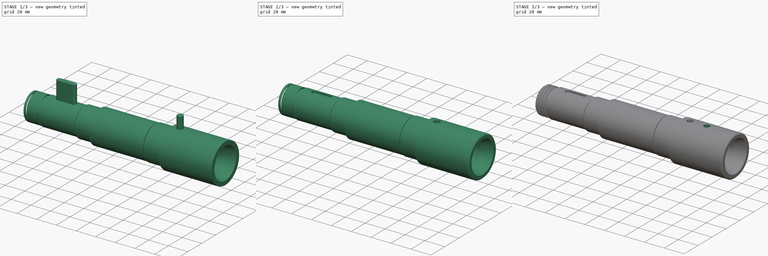
[diagram: build sequence overview — one tinted view per stage of 3, left to right]
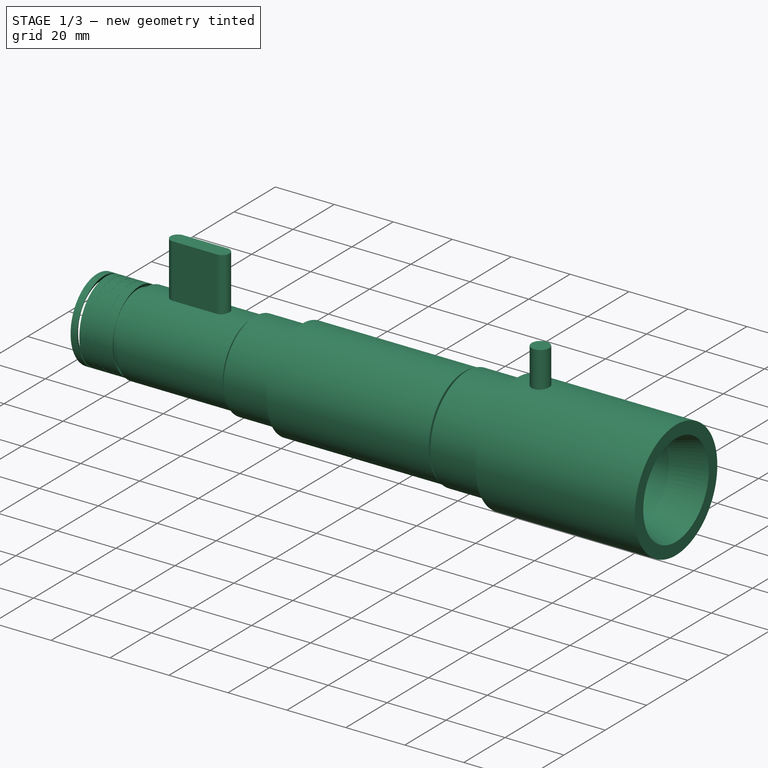
[diagram: stage 1 of 3 — iso view after this stage's code; geometry added in this stage tinted green]
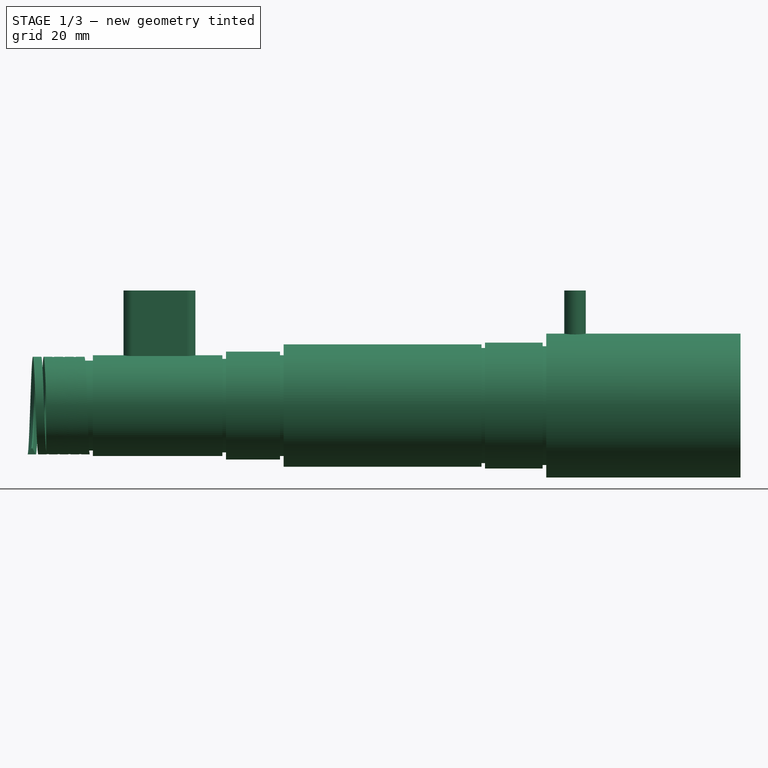
[diagram: stage 1 of 3 — front view after this stage's code; geometry added in this stage tinted green]
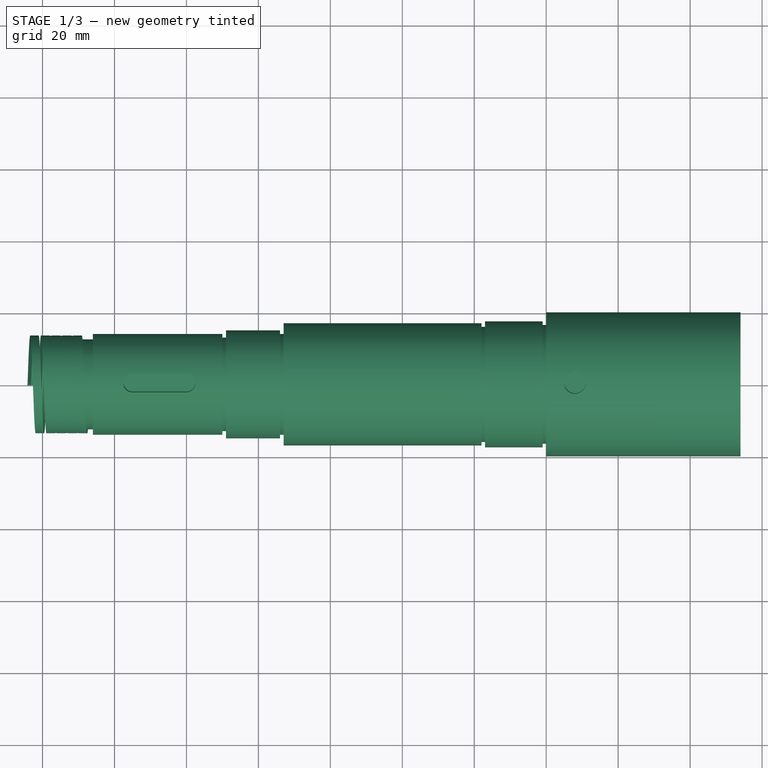
[diagram: stage 1 of 3 — top view after this stage's code; geometry added in this stage tinted green]
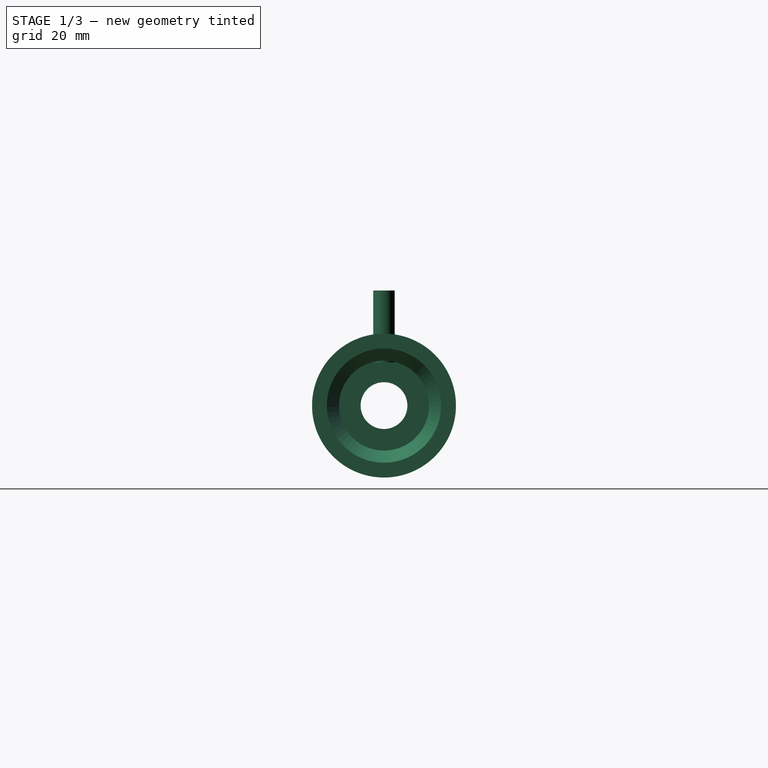
[diagram: stage 1 of 3 — right view after this stage's code; geometry added in this stage tinted green]
FCSTD DOCUMENT  (FreeCAD 0.16R5653 (Git))
Label: Spindle-2
License: All rights reserved
LicenseURL: http://en.wikipedia.org/wiki/All_rights_reserved
objects: Sketcher::SketchObject×4, Part::Cut×3, PartDesign::Pad×2, PartDesign::Revolution×1, PartDesign::Chamfer×1, Part::Feature×1, Part::Sweep×1
note: 16 computed .brp shape members not serialized (recipe doc carries the construction recipe); baked Part::Feature solids carry a one-line shape summary decoded from their .brp

FEATURE [Sketcher::SketchObject] Sketch
  Placement = pos=(0,0,0) rot=(1,0,0;1.5708rad)
  sketch-geometry (33):
    g0: LineSegment StartX=-132.021 StartY=10 StartZ=0 EndX=-139 EndY=10 EndZ=0
    g1: LineSegment StartX=-139 StartY=10 StartZ=0 EndX=-139 EndY=13.5 EndZ=0
    g2: LineSegment StartX=-139 StartY=13.5 StartZ=0 EndX=-129 EndY=13.5 EndZ=0
    g3: LineSegment StartX=-129 StartY=13.5 StartZ=0 EndX=-129 EndY=12.5 EndZ=0
    g4: LineSegment StartX=-129 StartY=12.5 StartZ=0 EndX=-126 EndY=12.5 EndZ=0
    g5: LineSegment StartX=-126 StartY=12.5 StartZ=0 EndX=-126 EndY=14 EndZ=0
    g6: LineSegment StartX=-126 StartY=14 StartZ=0 EndX=-90 EndY=14 EndZ=0
    g7: LineSegment StartX=-90 StartY=14 StartZ=0 EndX=-90 EndY=13 EndZ=0
    g8: LineSegment StartX=-90 StartY=13 StartZ=0 EndX=-89 EndY=13 EndZ=0
    g9: LineSegment StartX=-89 StartY=13 StartZ=0 EndX=-89 EndY=15 EndZ=0
    g10: LineSegment StartX=-89 StartY=15 StartZ=0 EndX=-74 EndY=15 EndZ=0
    g11: LineSegment StartX=-74 StartY=15 StartZ=0 EndX=-74 EndY=14 EndZ=0
    g12: LineSegment StartX=-74 StartY=14 StartZ=0 EndX=-73 EndY=14 EndZ=0
    g13: LineSegment StartX=-73 StartY=14 StartZ=0 EndX=-73 EndY=17 EndZ=0
    g14: LineSegment StartX=-73 StartY=17 StartZ=0 EndX=-18 EndY=17 EndZ=0
    g15: LineSegment StartX=-18 StartY=17 StartZ=0 EndX=-18 EndY=16 EndZ=0
    g16: LineSegment StartX=-18 StartY=16 StartZ=0 EndX=-17 EndY=16 EndZ=0
    g17: LineSegment StartX=-17 StartY=16 StartZ=0 EndX=-17 EndY=17.5 EndZ=0
    g18: LineSegment StartX=-17 StartY=17.5 StartZ=0 EndX=-1 EndY=17.5 EndZ=0
    g19: LineSegment StartX=-1 StartY=17.5 StartZ=0 EndX=-1 EndY=16.5 EndZ=0
    g20: LineSegment StartX=-1 StartY=16.5 StartZ=0 EndX=0 EndY=16.5 EndZ=0
    g21: LineSegment StartX=0 StartY=16.5 StartZ=0 EndX=0 EndY=20 EndZ=0
    g22: LineSegment StartX=0 StartY=20 StartZ=0 EndX=54 EndY=20 EndZ=0
    g23: LineSegment StartX=54 StartY=20 StartZ=0 EndX=54 EndY=15.875 EndZ=0
    g24: LineSegment StartX=54 StartY=15.875 StartZ=0 EndX=42.8566 EndY=12.5 EndZ=0
    g25: LineSegment StartX=-5 StartY=12.05 StartZ=0 EndX=-48 EndY=12.05 EndZ=0
    g26: LineSegment StartX=-48 StartY=12.05 StartZ=0 EndX=-48 EndY=13 EndZ=0
    g27: LineSegment StartX=-48 StartY=13 StartZ=0 EndX=-53 EndY=13 EndZ=0
    g28: LineSegment StartX=-132.021 StartY=10 StartZ=0 EndX=-130 EndY=6.5 EndZ=0
    g29: LineSegment StartX=-130 StartY=6.5 StartZ=0 EndX=-53 EndY=6.5 EndZ=0
    g30: LineSegment StartX=-53 StartY=6.5 StartZ=0 EndX=-53 EndY=13 EndZ=0
    g31: LineSegment StartX=-5 StartY=12.05 StartZ=0 EndX=-5 EndY=12.5 EndZ=0
    g32: LineSegment StartX=-5 StartY=12.5 StartZ=0 EndX=42.8566 EndY=12.5 EndZ=0
  constraints (99):
    c: Horizontal(g0)
    c: Coincident(g0,g1)
    c: Vertical(g1)
    c: Coincident(g1,g2)
    c: Horizontal(g2)
    c: Coincident(g2,g3)
    c: Coincident(g3,g4)
    c: Horizontal(g4)
    c: Coincident(g4,g5)
    c: Coincident(g5,g6)
    c: Horizontal(g6)
    c: Coincident(g6,g7)
    c: Coincident(g7,g8)
    c: Horizontal(g8)
    c: Coincident(g8,g9)
    c: Vertical(g9)
    c: Coincident(g9,g10)
    c: Horizontal(g10)
    c: Coincident(g10,g11)
    c: Coincident(g11,g12)
    c: Horizontal(g12)
    c: Coincident(g12,g13)
    c: Vertical(g13)
    c: Coincident(g13,g14)
    c: Horizontal(g14)
    c: Coincident(g14,g15)
    c: Coincident(g15,g16)
    c: Coincident(g16,g17)
    c: Vertical(g17)
    c: Coincident(g17,g18)
    c: Horizontal(g18)
    c: Coincident(g18,g19)
    c: Vertical(g19)
    c: Coincident(g19,g20)
    c: Coincident(g20,g21)
    c: PointOnObject(g21,g-2)
    c: Vertical(g21)
    c: Coincident(g21,g22)
    c: Horizontal(g22)
    c: Coincident(g22,g23)
    c: Vertical(g23)
    c: Coincident(g23,g24)
    c: Horizontal(g25)
    c: Coincident(g25,g26)
    c: Vertical(g26)
    c: Coincident(g26,g27)
    c: DistanceX(g27) = -5
    c: DistanceY(g-1,g0) = 10
    c: DistanceX(g2) = 10
    c: Vertical(g3)
    c: Vertical(g5)
    c: DistanceX(g0,g4) = 13
    c: DistanceY(g-1,g1) = 13.5
    c: DistanceY(g3) = -1
    c: DistanceX(g4,g8) = 37
    c: Vertical(g7)
    c: DistanceY(g7) = -1
    c: DistanceY(g-1,g6) = 14
    c: DistanceX(g23,g0) = -193
    c: Vertical(g11)
    c: Horizontal(g27)
    c: DistanceX(g8) = 1
    c: DistanceY(g-1,g25) = 12.05
    c: DistanceY(g-1,g26) = 13
    c: DistanceY(g-1,g9) = 15
    c: DistanceX(g8,g12) = 16
    c: DistanceY(g11) = -1
    c: DistanceX(g12) = 1
    c: Coincident(g28,g29)
    c: Horizontal(g29)
    c: Coincident(g29,g30)
    c: Vertical(g30)
    c: Coincident(g30,g27)
    c: Coincident(g0,g28)
    c: DistanceY(g-1,g28) = 6.5
    c: Horizontal(g20)
    c: Vertical(g15)
    c: Horizontal(g16)
    c: DistanceX(g16) = 1
    c: DistanceY(g15) = -1
    c: DistanceX(g16,g12) = -56
    c: DistanceX(g20) = 1
    c: DistanceY(g19) = -1
    c: DistanceX(g16,g20) = 17
    c: DistanceX(g12,g27) = 20
    c: DistanceX(g25) = -43
    c: Vertical(g31)
    c: Coincident(g31,g32)
    c: Horizontal(g32)
    c: Coincident(g32,g24)
    c: Coincident(g31,g25)
    c: DistanceY(g-1,g24) = 12.5
    c: DistanceY(g-1,g23) = 15.875
    c: DistanceY(g-1,g22) = 20
    c: DistanceY(g-1,g17) = 17.5
    c: DistanceY(g-1,g13) = 17
    c: Angle(g24,g32) = 2.8475
    c: Angle(g0,g28) = 2.0944
    c: DistanceX(g0,g28) = 9
FEATURE [PartDesign::Revolution] Revolution
  Angle = 360
  Axis = (1,0,0)
  Base = (0,0,0)
  Placement = pos=(0,0,0) rot=(1,0,0;1.5708rad)
  ReferenceAxis = -> Sketch [H_Axis]
  Sketch = -> Sketch
FEATURE [Sketcher::SketchObject] Sketch001
  Placement = pos=(0,0,12) rot=(0,0,1;0rad)
  sketch-geometry (5):
    g0: Circle CenterX=8 CenterY=0 CenterZ=0 NormalX=0 NormalY=0 NormalZ=1 Radius=3
    g1: ArcOfCircle CenterX=-115 CenterY=0 CenterZ=0 NormalX=0 NormalY=0 NormalZ=1 Radius=2.5 StartAngle=1.5708 EndAngle=4.71239
    g2: ArcOfCircle CenterX=-100 CenterY=0 CenterZ=0 NormalX=0 NormalY=0 NormalZ=1 Radius=2.5 StartAngle=4.71239 EndAngle=7.85398
    g3: LineSegment StartX=-115 StartY=-2.5 StartZ=0 EndX=-100 EndY=-2.5 EndZ=0
    g4: LineSegment StartX=-115 StartY=2.5 StartZ=0 EndX=-100 EndY=2.5 EndZ=0
  constraints (12):
    c: PointOnObject(g0,g-1)
    c: DistanceX(g-1,g0) = 8
    c: Tangent(g1,g4) = 1.5708
    c: Tangent(g1,g3) = -1.5708
    c: Tangent(g3,g2) = -1.5708
    c: Tangent(g4,g2) = 1.5708
    c: Horizontal(g3)
    c: Equal(g1,g2)
    c: Radius(g2) = 2.5
    c: PointOnObject(g2,g-1)
    c: DistanceX(g1,g2) = 15
    c: DistanceX(g-1,g2) = -100
FEATURE [PartDesign::Pad] Pad
  Length = 20
  Length2 = 100
  Placement = pos=(0,0,12) rot=(0,0,1;0rad)
  Sketch = -> Sketch001
  Type = 0
FEATURE [Part::Feature] Shape
  shape: bbox 23.76 x 23.76 x 15 mm, 0 faces, 0 solids (baked)
FEATURE [Sketcher::SketchObject] Sketch003
  Placement = pos=(0,0,0) rot=(-1,0,0;4.71239rad)
  sketch-geometry (4):
    g0: LineSegment StartX=13.576 StartY=-1.169 StartZ=0 EndX=11.876 EndY=-0.1875 EndZ=0
    g1: LineSegment StartX=11.876 StartY=-0.1875 StartZ=0 EndX=11.876 EndY=0.1875 EndZ=0
    g2: LineSegment StartX=11.876 StartY=0.1875 StartZ=0 EndX=13.576 EndY=1.169 EndZ=0
    g3: LineSegment StartX=13.576 StartY=1.169 StartZ=0 EndX=13.576 EndY=-1.169 EndZ=0
  constraints (12):
    c: Coincident(g0,g1)
    c: Vertical(g1)
    c: Coincident(g1,g2)
    c: Coincident(g2,g3)
    c: Vertical(g3)
    c: Coincident(g3,g0)
    c: DistanceX(g-1,g1) = 11.876
    c: Symmetric(g1,g0,g-1)
    c: DistanceY(g1) = 0.375
    c: Symmetric(g2,g0,g-1)
    c: Angle(g0,g2) = 1.0472
    c: DistanceX(g0,g0) = 1.7
FEATURE [Part::Sweep] Sweep
  Frenet = true
  Placement = pos=(-143,0,0) rot=(0,1,0;1.5708rad)
  Sections = -> [Sketch003]
  Solid = true
  Spine = -> Shape [Edge1]
  Transition = 1
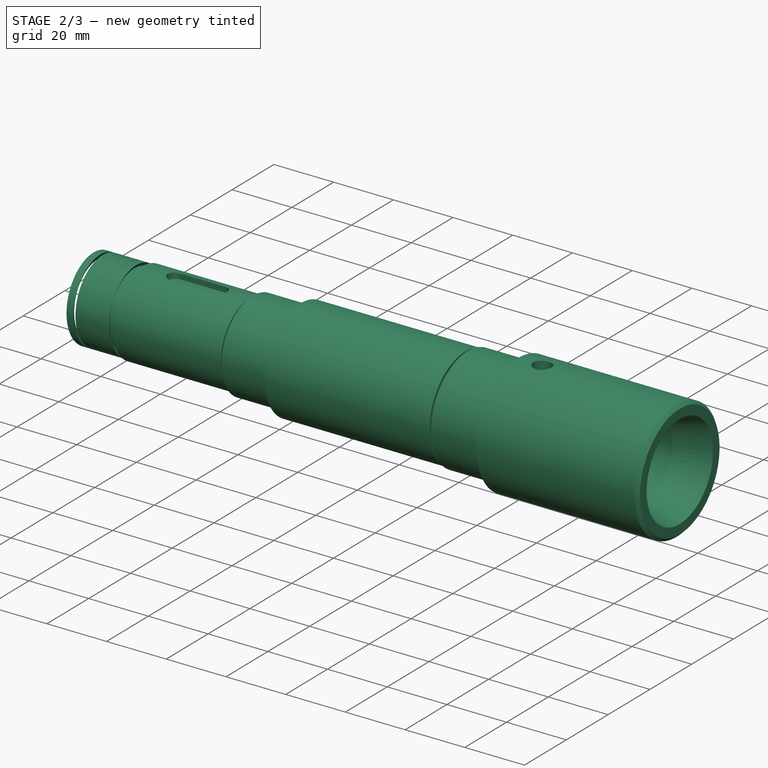
[diagram: stage 2 of 3 — iso view after this stage's code; geometry added in this stage tinted green]
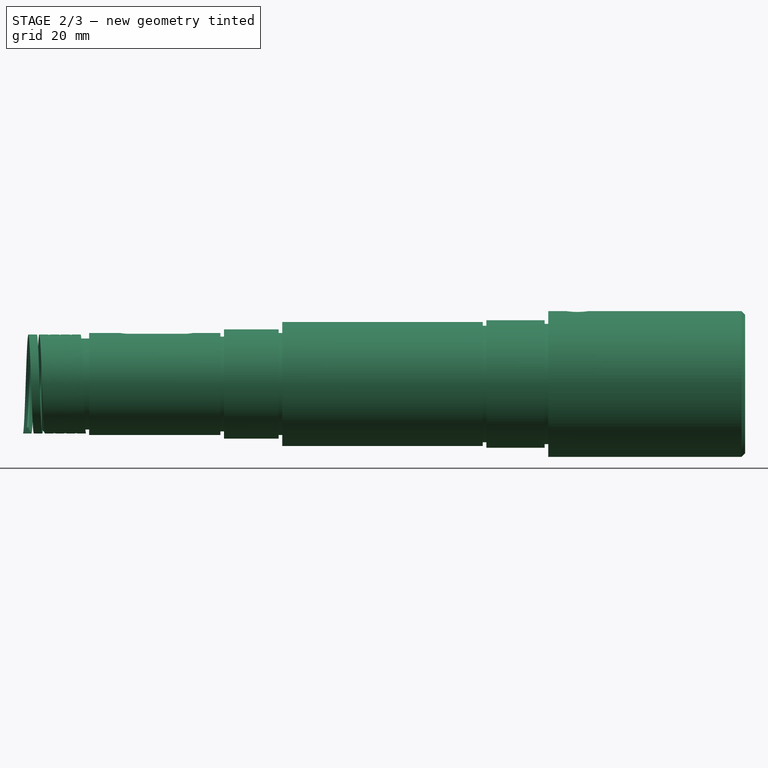
[diagram: stage 2 of 3 — front view after this stage's code; geometry added in this stage tinted green]
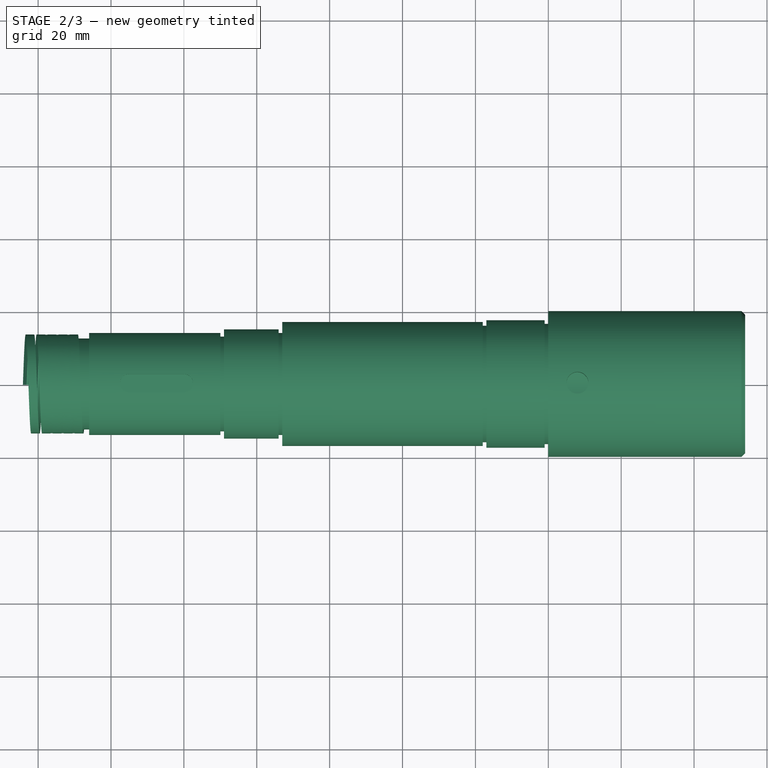
[diagram: stage 2 of 3 — top view after this stage's code; geometry added in this stage tinted green]
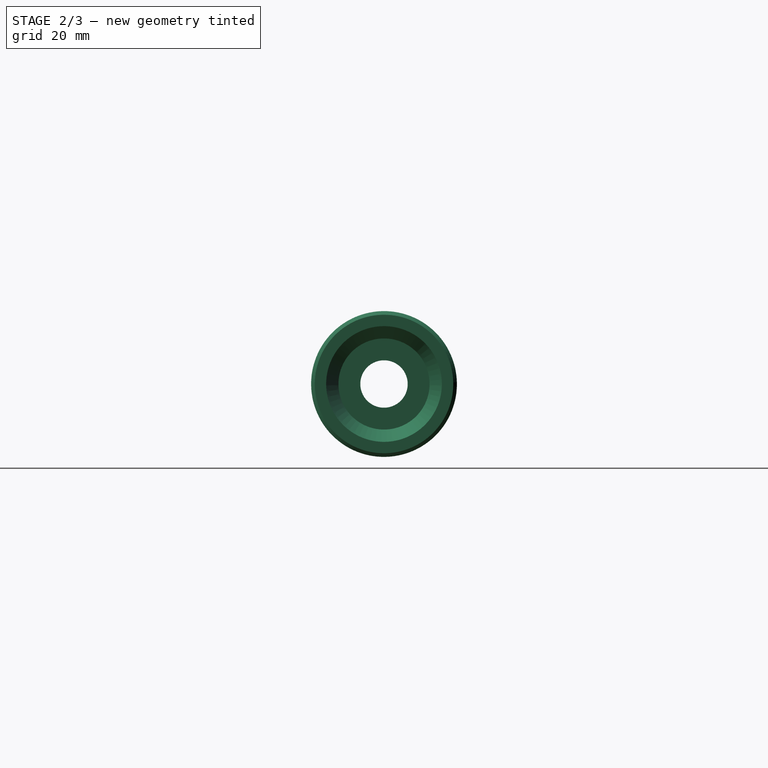
[diagram: stage 2 of 3 — right view after this stage's code; geometry added in this stage tinted green]
FEATURE [PartDesign::Chamfer] Chamfer
  Base = -> Revolution [Edge6,Edge37]
  Placement = pos=(0,0,0) rot=(1,0,0;1.5708rad)
  Size = 1
FEATURE [Part::Cut] Cut
  Base = -> Chamfer
  Tool = -> Pad
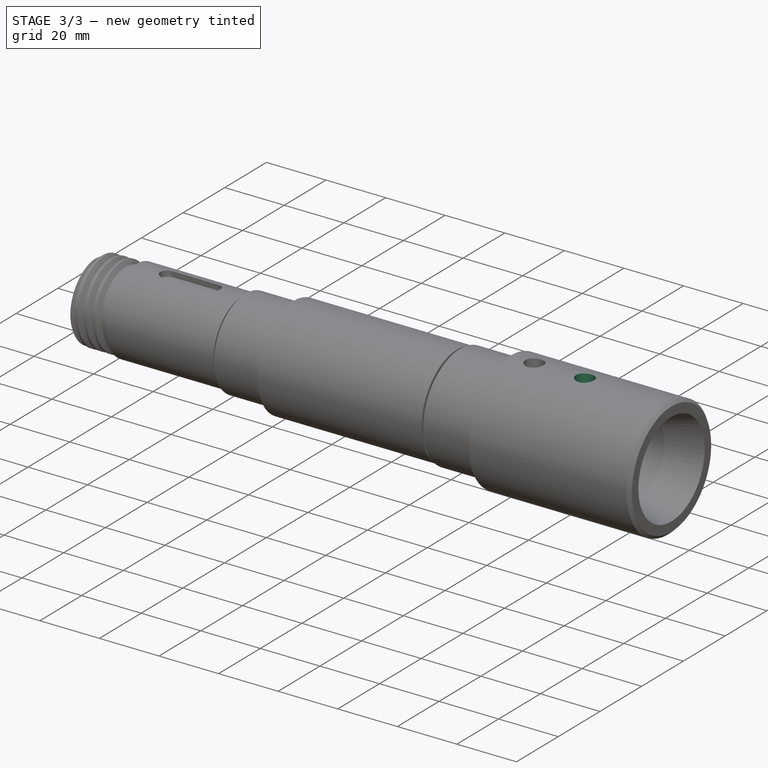
[diagram: stage 3 of 3 — iso view after this stage's code; geometry added in this stage tinted green]
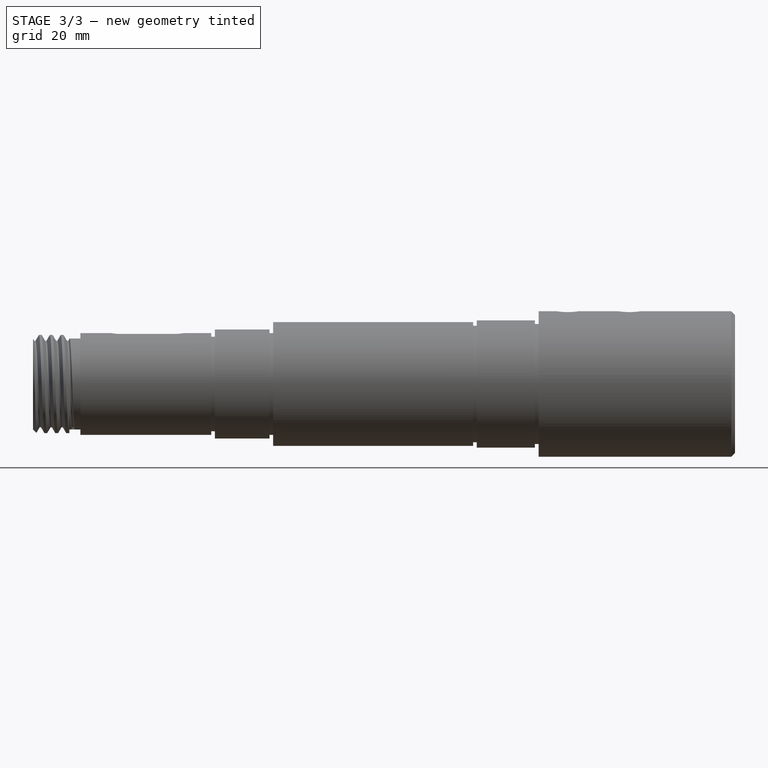
[diagram: stage 3 of 3 — front view after this stage's code; geometry added in this stage tinted green]
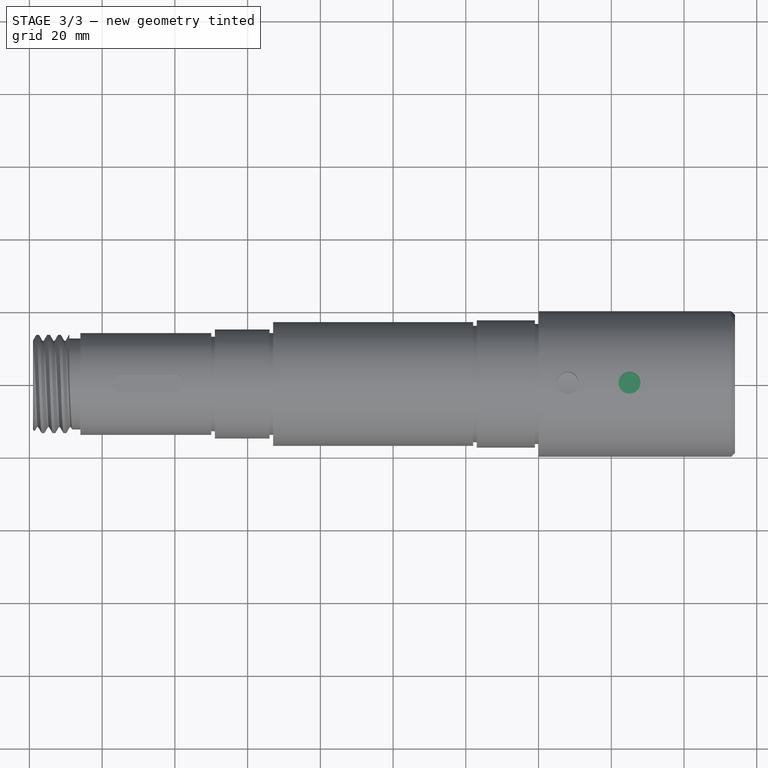
[diagram: stage 3 of 3 — top view after this stage's code; geometry added in this stage tinted green]
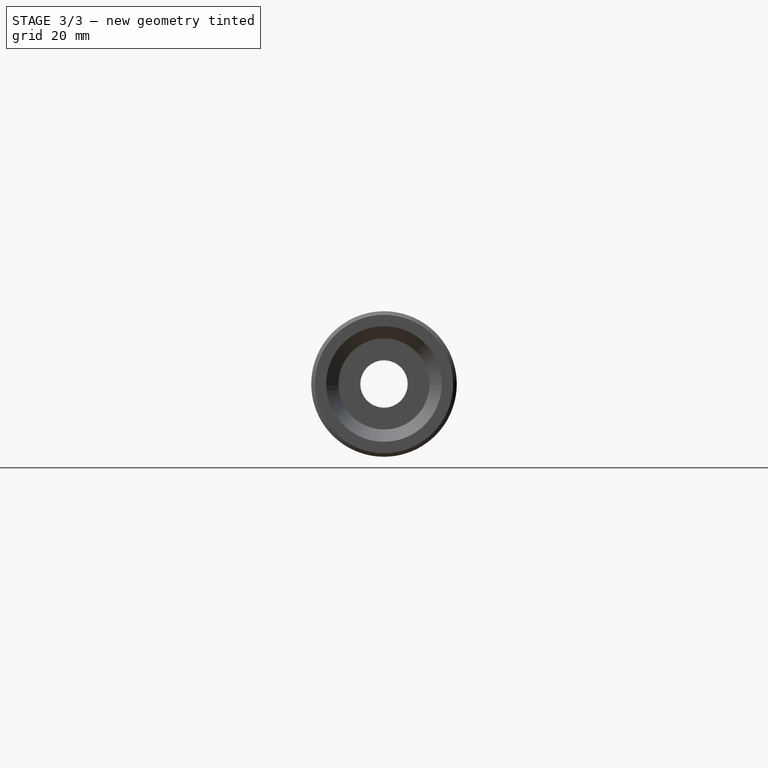
[diagram: stage 3 of 3 — right view after this stage's code; geometry added in this stage tinted green]
FEATURE [Sketcher::SketchObject] Sketch002
  Placement = pos=(0,0,15) rot=(0,0,1;0rad)
  sketch-geometry (1):
    g0: Circle CenterX=25 CenterY=0 CenterZ=0 NormalX=0 NormalY=0 NormalZ=1 Radius=3
  constraints (3):
    c: PointOnObject(g0,g-1)
    c: DistanceX(g-1,g0) = 25
    c: Radius(g0) = 3
FEATURE [PartDesign::Pad] Pad001
  Length = 10
  Length2 = 100
  Placement = pos=(0,0,15) rot=(0,0,1;0rad)
  Sketch = -> Sketch002
  Type = 0
FEATURE [Part::Cut] Cut001
  Base = -> Cut
  Tool = -> Pad001
FEATURE [Part::Cut] Cut002
  Base = -> Cut001
  Tool = -> Sweep
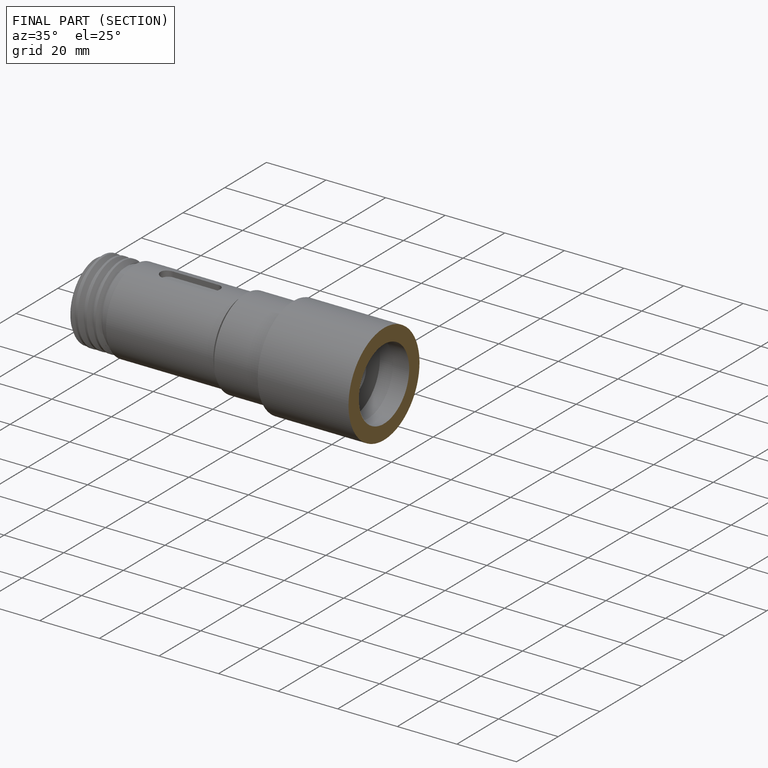
[diagram: finished part — half-section view (interior)]
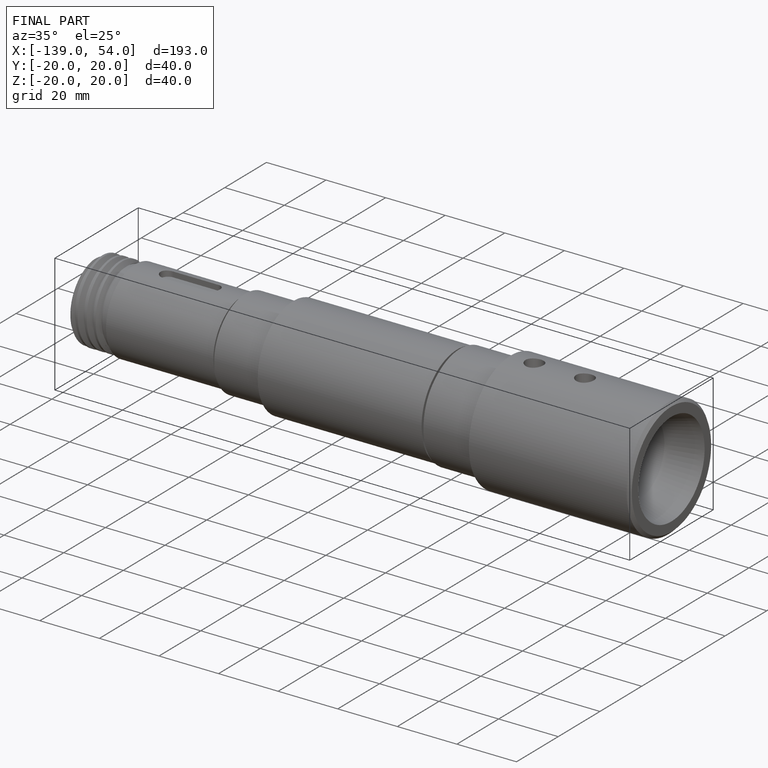
[diagram: finished part — iso view with bounding-box wireframe]
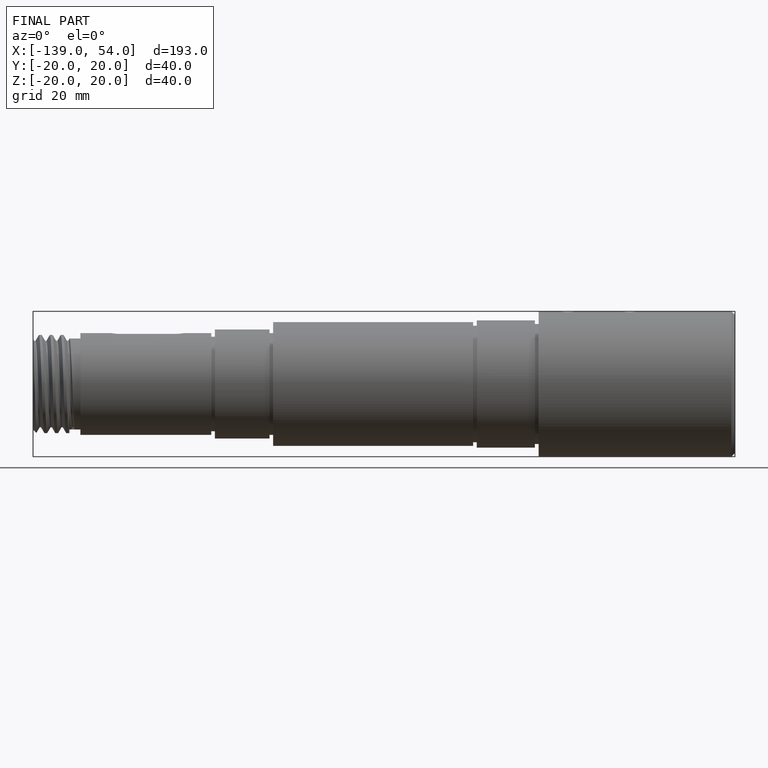
[diagram: finished part — front view with bounding-box wireframe]
